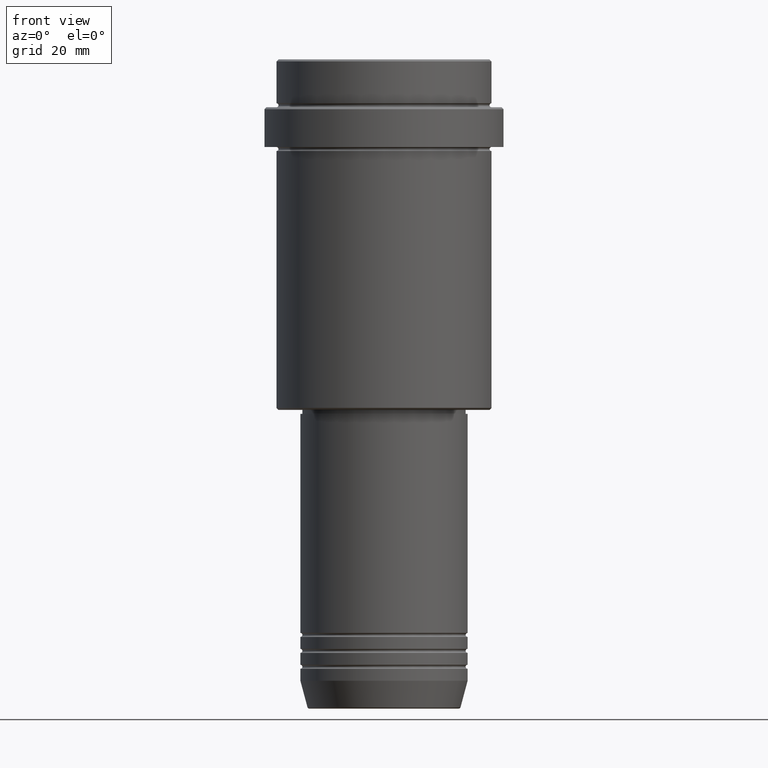
[diagram: clean part render]
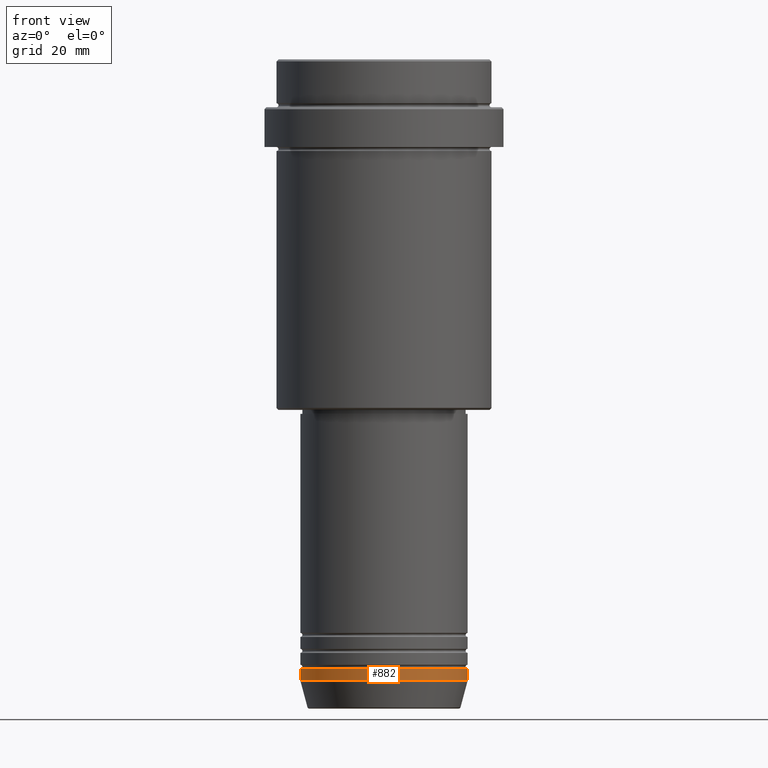
[diagram: same view with one face highlighted and labeled with its STEP entity id]
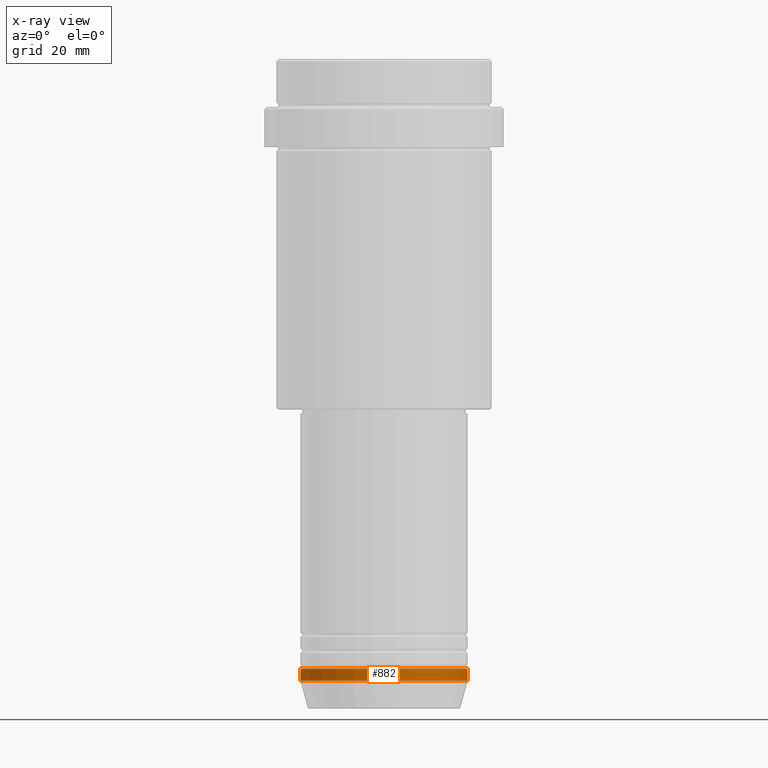
[diagram: x-ray of the same camera — body ghosted, the highlighted face saturated]
A machine part, front view. The second image highlights one B-rep face of the part: STEP entity #882.
The next image is the same camera in x-ray: the body ghosted, the highlighted face saturated — about 0% of this face is hidden behind the body in this view.
In plain terms, the highlighted cylindrical surface (partial cylindrical patch) has radius 21 mm, axis along (-0, -0, 1).
Its self-contained STEP definition (entity closure, byte-faithful):
#33 = VERTEX_POINT ( 'NONE', #502 ) ;
#37 = CYLINDRICAL_SURFACE ( 'NONE', #1144, 21.00000000000000000 ) ;
#70 = DIRECTION ( 'NONE',  ( -0.000000000000000000, -0.000000000000000000, 1.000000000000000000 ) ) ;
#120 = VECTOR ( 'NONE', #299, 1000.000000000000000 ) ;
#124 = DIRECTION ( 'NONE',  ( -0.000000000000000000, -0.000000000000000000, 1.000000000000000000 ) ) ;
#141 = FACE_OUTER_BOUND ( 'NONE', #795, .T. ) ;
#209 = LINE ( 'NONE', #320, #120 ) ;
#266 = EDGE_CURVE ( 'NONE', #33, #765, #801, .T. ) ;
#276 = CARTESIAN_POINT ( 'NONE',  ( 21.00000000000000000, 0.000000000000000000, -153.0000000000000000 ) ) ;
#297 = CARTESIAN_POINT ( 'NONE',  ( 0.000000000000000000, 0.000000000000000000, -156.0000000000000000 ) ) ;
#299 = DIRECTION ( 'NONE',  ( -0.000000000000000000, -0.000000000000000000, 1.000000000000000000 ) ) ;
#315 = DIRECTION ( 'NONE',  ( 1.000000000000000000, 0.000000000000000000, 0.000000000000000000 ) ) ;
#320 = CARTESIAN_POINT ( 'NONE',  ( -21.00000000000000000, 2.571758278209441661E-15, 0.000000000000000000 ) ) ;
#321 = LINE ( 'NONE', #1076, #1239 ) ;
#446 = VERTEX_POINT ( 'NONE', #1135 ) ;
#452 = CARTESIAN_POINT ( 'NONE',  ( 21.00000000000000000, 0.000000000000000000, -156.0000000000000000 ) ) ;
#460 = ORIENTED_EDGE ( 'NONE', *, *, #266, .T. ) ;
#502 = CARTESIAN_POINT ( 'NONE',  ( -21.00000000000000000, 2.571758278209441661E-15, -156.0000000000000000 ) ) ;
#564 = CIRCLE ( 'NONE', #738, 21.00000000000000000 ) ;
#650 = EDGE_CURVE ( 'NONE', #33, #446, #209, .T. ) ;
#710 = DIRECTION ( 'NONE',  ( 1.000000000000000000, 0.000000000000000000, 0.000000000000000000 ) ) ;
#738 = AXIS2_PLACEMENT_3D ( 'NONE', #1169, #70, #710 ) ;
#764 = DIRECTION ( 'NONE',  ( -0.000000000000000000, -0.000000000000000000, 1.000000000000000000 ) ) ;
#765 = VERTEX_POINT ( 'NONE', #452 ) ;
#795 = EDGE_LOOP ( 'NONE', ( #1100, #460, #1071, #1131 ) ) ;
#801 = CIRCLE ( 'NONE', #1032, 21.00000000000000000 ) ;
#882 = ADVANCED_FACE ( 'NONE', ( #141 ), #37, .T. ) ;
#888 = DIRECTION ( 'NONE',  ( 1.000000000000000000, 0.000000000000000000, 0.000000000000000000 ) ) ;
#1032 = AXIS2_PLACEMENT_3D ( 'NONE', #297, #1174, #315 ) ;
#1071 = ORIENTED_EDGE ( 'NONE', *, *, #1207, .T. ) ;
#1076 = CARTESIAN_POINT ( 'NONE',  ( 21.00000000000000000, 0.000000000000000000, 0.000000000000000000 ) ) ;
#1100 = ORIENTED_EDGE ( 'NONE', *, *, #650, .F. ) ;
#1131 = ORIENTED_EDGE ( 'NONE', *, *, #1365, .F. ) ;
#1135 = CARTESIAN_POINT ( 'NONE',  ( -21.00000000000000000, 2.571758278209441661E-15, -153.0000000000000000 ) ) ;
#1144 = AXIS2_PLACEMENT_3D ( 'NONE', #1232, #124, #888 ) ;
#1169 = CARTESIAN_POINT ( 'NONE',  ( 0.000000000000000000, 0.000000000000000000, -153.0000000000000000 ) ) ;
#1174 = DIRECTION ( 'NONE',  ( -0.000000000000000000, -0.000000000000000000, 1.000000000000000000 ) ) ;
#1207 = EDGE_CURVE ( 'NONE', #765, #1364, #321, .T. ) ;
#1232 = CARTESIAN_POINT ( 'NONE',  ( 0.000000000000000000, 0.000000000000000000, 0.000000000000000000 ) ) ;
#1239 = VECTOR ( 'NONE', #764, 1000.000000000000000 ) ;
#1364 = VERTEX_POINT ( 'NONE', #276 ) ;
#1365 = EDGE_CURVE ( 'NONE', #446, #1364, #564, .T. ) ;